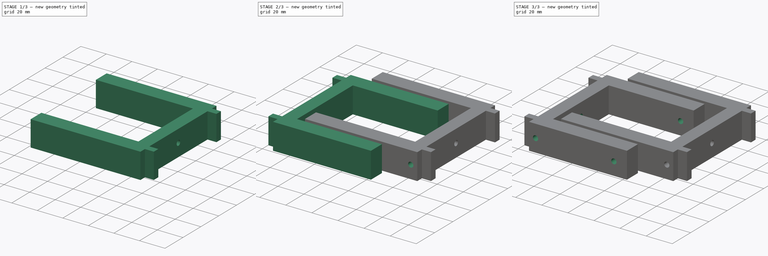
[diagram: build sequence overview — one tinted view per stage of 3, left to right]
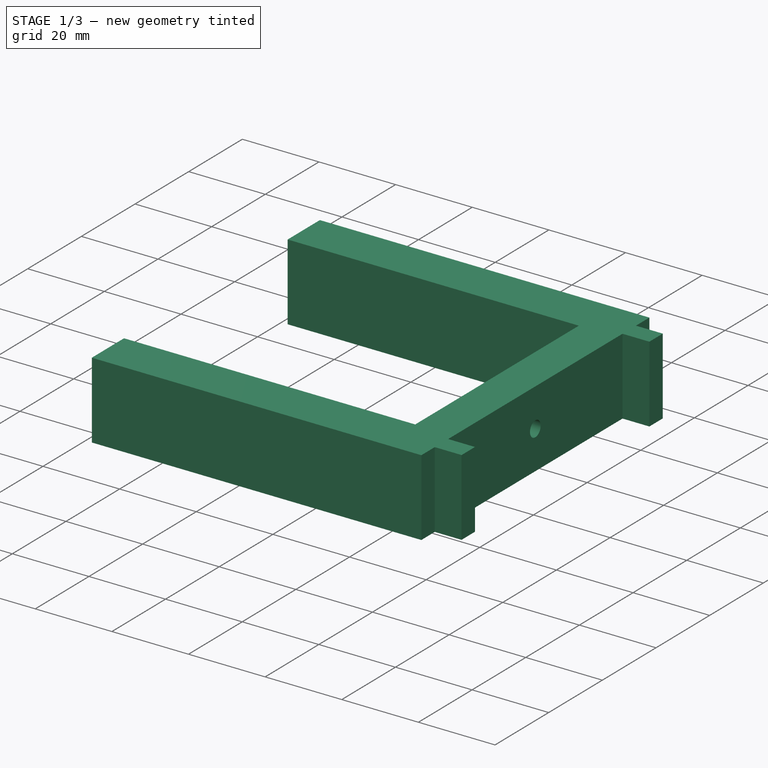
[diagram: stage 1 of 3 — iso view after this stage's code; geometry added in this stage tinted green]
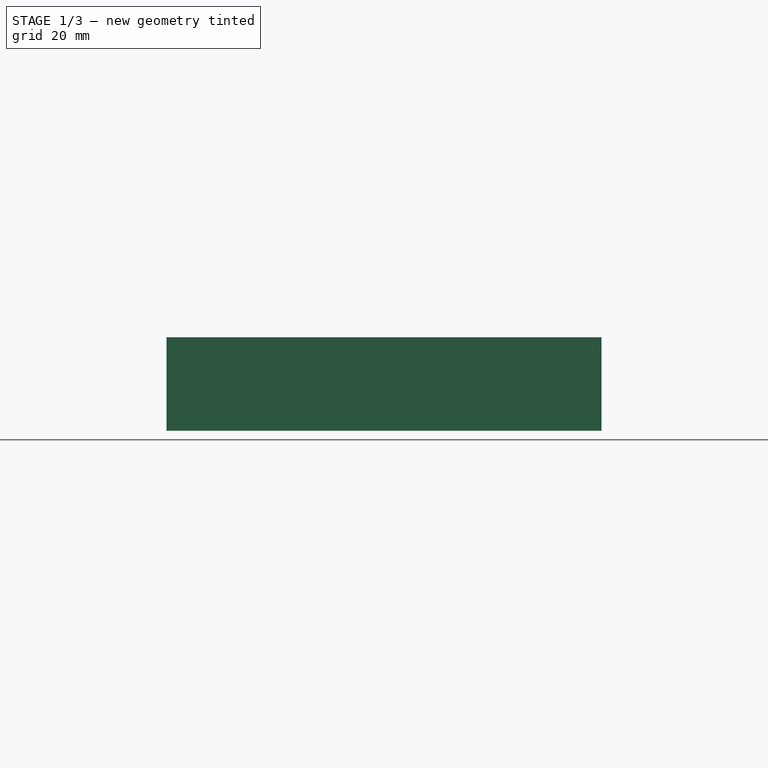
[diagram: stage 1 of 3 — front view after this stage's code; geometry added in this stage tinted green]
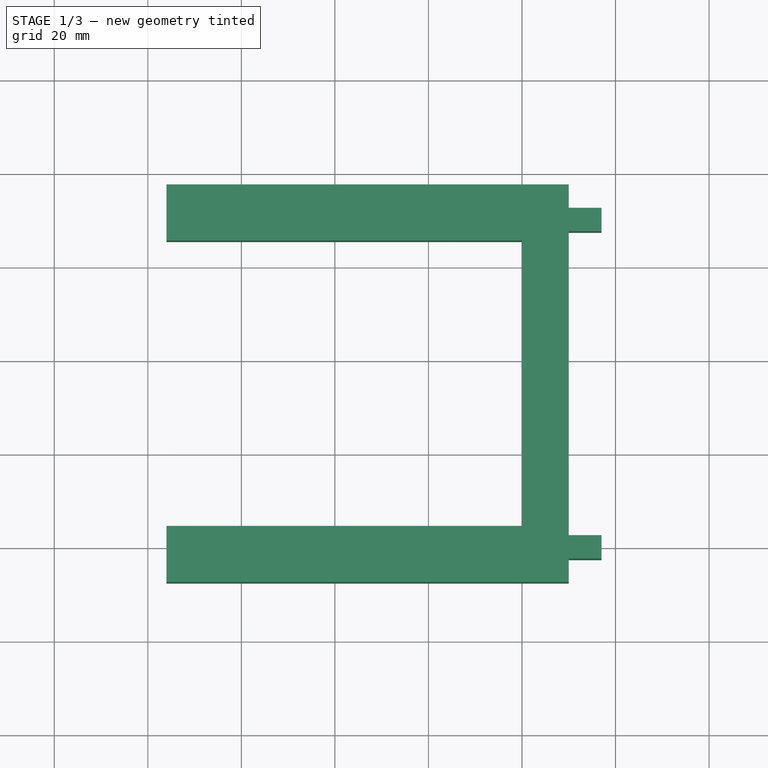
[diagram: stage 1 of 3 — top view after this stage's code; geometry added in this stage tinted green]
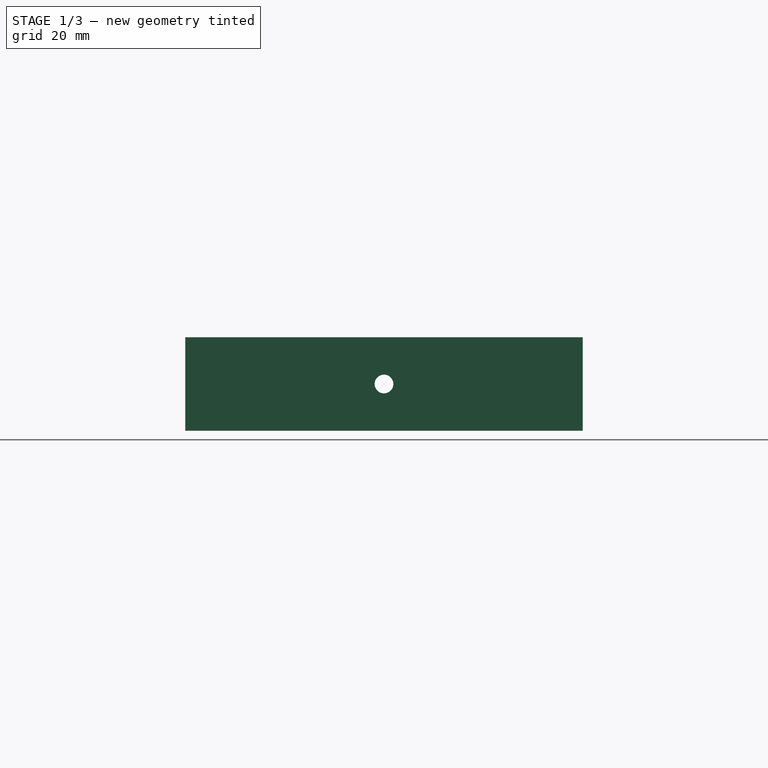
[diagram: stage 1 of 3 — right view after this stage's code; geometry added in this stage tinted green]
FCSTD DOCUMENT  (FreeCAD 0.15R4671 (Git))
Label: soporte_75_86
License: CreativeCommons Attribution-ShareAlike
LicenseURL: http://creativecommons.org/licenses/by-sa/4.0/
objects: Sketcher::SketchObject×6, PartDesign::Pocket×4, PartDesign::Pad×2, App::DocumentObjectGroup×2
note: 18 computed .brp shape members not serialized (recipe doc carries the construction recipe); baked Part::Feature solids carry a one-line shape summary decoded from their .brp

FEATURE [App::DocumentObjectGroup] Group  label="soporte_75mm"
  Group = -> [Pad,Pocket002,Pocket003]
FEATURE [Sketcher::SketchObject] Sketch006  label="sketch_soporte001"
  Placement = pos=(80,15,0) rot=(0,0,1;3.14159rad)
  sketch-geometry (16):
    g0: LineSegment StartX=-10 StartY=-42.5 StartZ=0 EndX=76 EndY=-42.5 EndZ=0
    g1: LineSegment StartX=76 StartY=-42.5 StartZ=0 EndX=76 EndY=-30.5 EndZ=0
    g2: LineSegment StartX=76 StartY=-30.5 StartZ=0 EndX=0 EndY=-30.5 EndZ=0
    g3: LineSegment StartX=0 StartY=30.5 StartZ=0 EndX=76 EndY=30.5 EndZ=0
    g4: LineSegment StartX=76 StartY=30.5 StartZ=0 EndX=76 EndY=42.5 EndZ=0
    g5: LineSegment StartX=76 StartY=42.5 StartZ=0 EndX=-10 EndY=42.5 EndZ=0
    g6: LineSegment StartX=-10 StartY=-42.5 StartZ=0 EndX=-10 EndY=-37.5 EndZ=0
    g7: LineSegment StartX=-10 StartY=-37.5 StartZ=0 EndX=-17 EndY=-37.5 EndZ=0
    g8: LineSegment StartX=-17 StartY=-37.5 StartZ=0 EndX=-17 EndY=-32.5 EndZ=0
    g9: LineSegment StartX=-17 StartY=-32.5 StartZ=0 EndX=-10 EndY=-32.5 EndZ=0
    g10: LineSegment StartX=-10 StartY=-32.5 StartZ=0 EndX=-10 EndY=32.5 EndZ=0
    g11: LineSegment StartX=-10 StartY=32.5 StartZ=0 EndX=-17 EndY=32.5 EndZ=0
    g12: LineSegment StartX=-17 StartY=32.5 StartZ=0 EndX=-17 EndY=37.5 EndZ=0
    g13: LineSegment StartX=-17 StartY=37.5 StartZ=0 EndX=-10 EndY=37.5 EndZ=0
    g14: LineSegment StartX=-10 StartY=37.5 StartZ=0 EndX=-10 EndY=42.5 EndZ=0
    g15: LineSegment StartX=0 StartY=30.5 StartZ=0 EndX=0 EndY=-30.5 EndZ=0
  constraints (47):
    c: Horizontal(g0)
    c: Coincident(g0,g1)
    c: Vertical(g1)
    c: Coincident(g1,g2)
    c: Horizontal(g2)
    c: Horizontal(g3)
    c: Coincident(g3,g4)
    c: Vertical(g4)
    c: Coincident(g4,g5)
    c: Horizontal(g5)
    c: Symmetric(g3,g2,g-1)
    c: DistanceX(g0) = 86
    c: Equal(g1,g4)
    c: Equal(g5,g0)
    c: DistanceY(g1) = 12
    c: DistanceX(g2,g0) = -10
    c: DistanceY(g5,g0) = -85
    c: Coincident(g0,g6)
    c: Vertical(g6)
    c: Coincident(g6,g7)
    c: Horizontal(g7)
    c: Coincident(g7,g8)
    c: Vertical(g8)
    c: Coincident(g8,g9)
    c: Horizontal(g9)
    c: Coincident(g9,g10)
    c: Vertical(g10)
    c: Coincident(g10,g11)
    c: Horizontal(g11)
    c: Coincident(g11,g12)
    c: Vertical(g12)
    c: Coincident(g12,g13)
    c: Horizontal(g13)
    c: Coincident(g13,g14)
    c: Coincident(g14,g5)
    c: Vertical(g14)
    c: Equal(g13,g11)
    c: Equal(g11,g9)
    c: Equal(g9,g7)
    c: Equal(g8,g12)
    c: Equal(g14,g6)
    c: DistanceY(g8) = 5
    c: DistanceX(g9) = 7
    c: DistanceY(g10) = 65
    c: Coincident(g15,g3)
    c: Coincident(g15,g2)
    c: PointOnObject(g-1,g15)
FEATURE [PartDesign::Pad] Pad001  label="soporte001"
  Length = 20
  Length2 = 100
  Placement = pos=(80,15,0) rot=(0,0,1;3.14159rad)
  Sketch = -> Sketch006
  Type = 0
FEATURE [Sketcher::SketchObject] Sketch007  label="sketch_agujero_superior001"
  ExternalGeometry = -> [Pad001]
  Placement = pos=(90,15,0) rot=(0.57735,0.57735,0.57735;2.0944rad)
  Support = -> Pad001 [Face13]
  sketch-geometry (3):
    g0: LineSegment [constr] StartX=0 StartY=20 StartZ=0 EndX=0 EndY=10 EndZ=0
    g1: LineSegment [constr] StartX=0 StartY=0 StartZ=0 EndX=0 EndY=10 EndZ=0
    g2: Circle CenterX=0 CenterY=10 CenterZ=0 NormalX=0 NormalY=0 NormalZ=1 Radius=2
  constraints (9):
    c: PointOnObject(g0,g-3)
    c: Vertical(g0)
    c: PointOnObject(g1,g-4)
    c: Coincident(g1,g0)
    c: Vertical(g1)
    c: Equal(g0,g1)
    c: Coincident(g1,g-1)
    c: Coincident(g2,g0)
    c: Radius(g2) = 2
FEATURE [PartDesign::Pocket] Pocket004  label="soporte_agujero_superior001"
  Length = 5
  Placement = pos=(80,15,0) rot=(0,0,1;3.14159rad)
  Sketch = -> Sketch007
  Type = 1
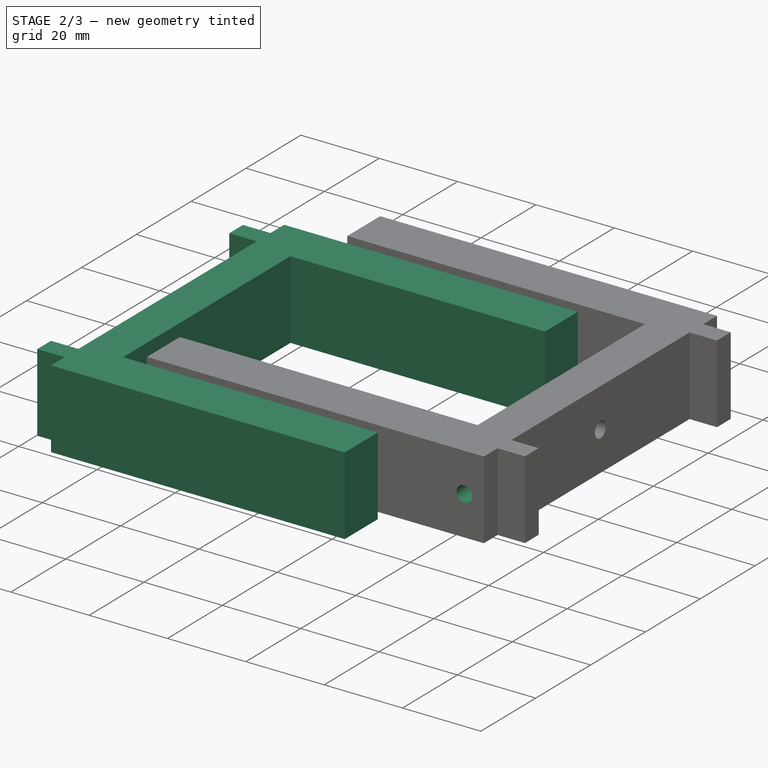
[diagram: stage 2 of 3 — iso view after this stage's code; geometry added in this stage tinted green]
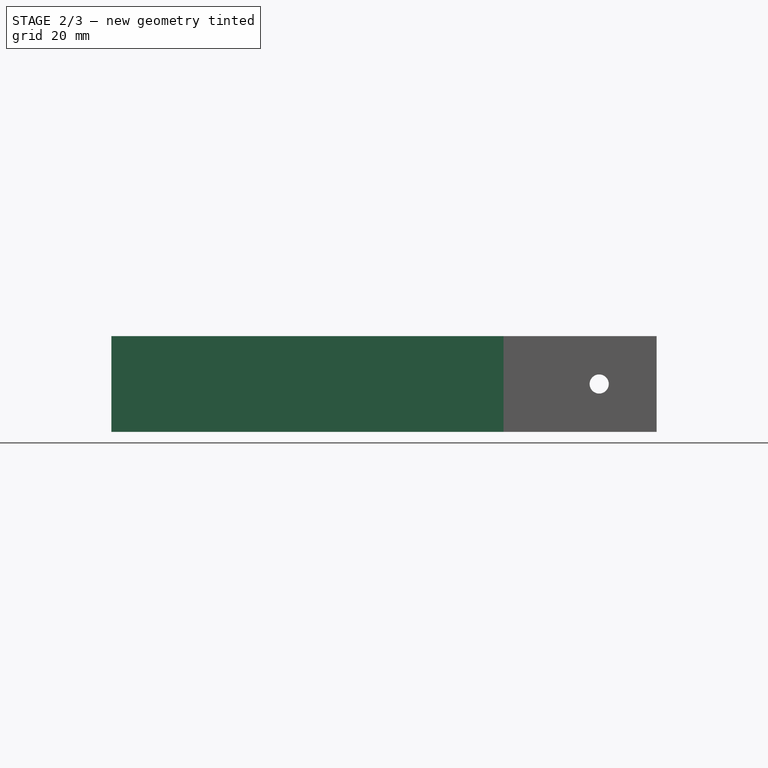
[diagram: stage 2 of 3 — front view after this stage's code; geometry added in this stage tinted green]
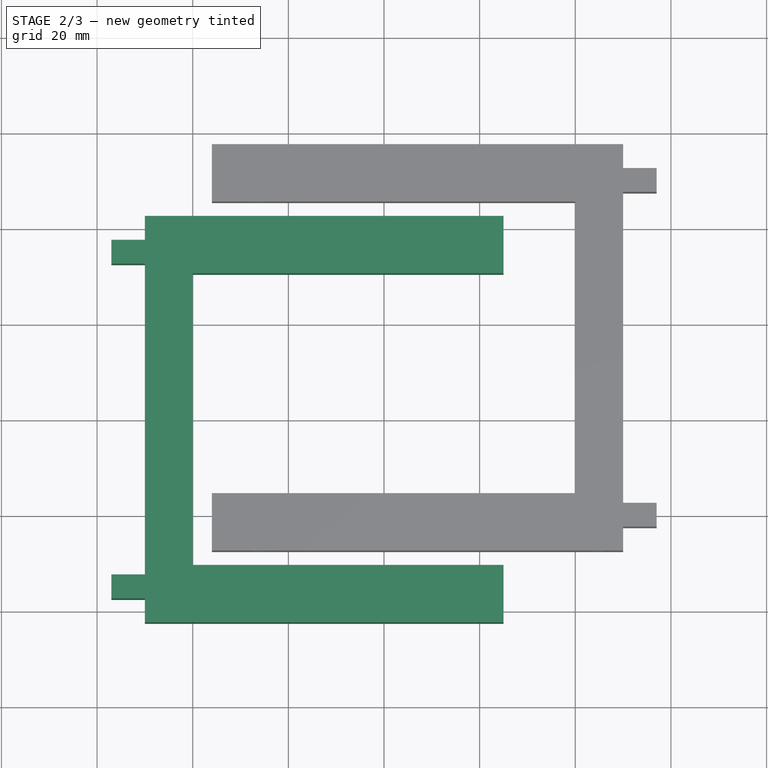
[diagram: stage 2 of 3 — top view after this stage's code; geometry added in this stage tinted green]
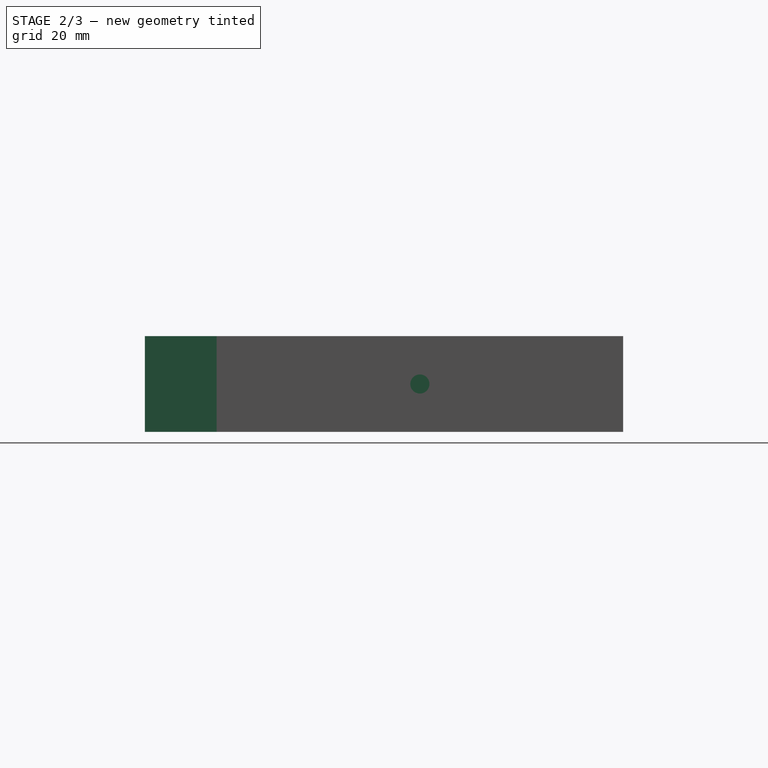
[diagram: stage 2 of 3 — right view after this stage's code; geometry added in this stage tinted green]
FEATURE [Sketcher::SketchObject] Sketch  label="sketch_soporte"
  sketch-geometry (16):
    g0: LineSegment StartX=-10 StartY=-42.5 StartZ=0 EndX=65 EndY=-42.5 EndZ=0
    g1: LineSegment StartX=65 StartY=-42.5 StartZ=0 EndX=65 EndY=-30.5 EndZ=0
    g2: LineSegment StartX=65 StartY=-30.5 StartZ=0 EndX=0 EndY=-30.5 EndZ=0
    g3: LineSegment StartX=0 StartY=30.5 StartZ=0 EndX=65 EndY=30.5 EndZ=0
    g4: LineSegment StartX=65 StartY=30.5 StartZ=0 EndX=65 EndY=42.5 EndZ=0
    g5: LineSegment StartX=65 StartY=42.5 StartZ=0 EndX=-10 EndY=42.5 EndZ=0
    g6: LineSegment StartX=-10 StartY=-42.5 StartZ=0 EndX=-10 EndY=-37.5 EndZ=0
    g7: LineSegment StartX=-10 StartY=-37.5 StartZ=0 EndX=-17 EndY=-37.5 EndZ=0
    g8: LineSegment StartX=-17 StartY=-37.5 StartZ=0 EndX=-17 EndY=-32.5 EndZ=0
    g9: LineSegment StartX=-17 StartY=-32.5 StartZ=0 EndX=-10 EndY=-32.5 EndZ=0
    g10: LineSegment StartX=-10 StartY=-32.5 StartZ=0 EndX=-10 EndY=32.5 EndZ=0
    g11: LineSegment StartX=-10 StartY=32.5 StartZ=0 EndX=-17 EndY=32.5 EndZ=0
    g12: LineSegment StartX=-17 StartY=32.5 StartZ=0 EndX=-17 EndY=37.5 EndZ=0
    g13: LineSegment StartX=-17 StartY=37.5 StartZ=0 EndX=-10 EndY=37.5 EndZ=0
    g14: LineSegment StartX=-10 StartY=37.5 StartZ=0 EndX=-10 EndY=42.5 EndZ=0
    g15: LineSegment StartX=0 StartY=30.5 StartZ=0 EndX=0 EndY=-30.5 EndZ=0
  constraints (47):
    c: Horizontal(g0)
    c: Coincident(g0,g1)
    c: Vertical(g1)
    c: Coincident(g1,g2)
    c: Horizontal(g2)
    c: Horizontal(g3)
    c: Coincident(g3,g4)
    c: Vertical(g4)
    c: Coincident(g4,g5)
    c: Horizontal(g5)
    c: Symmetric(g3,g2,g-1)
    c: DistanceX(g0) = 75
    c: Equal(g1,g4)
    c: Equal(g5,g0)
    c: DistanceY(g1) = 12
    c: DistanceX(g2,g0) = -10
    c: DistanceY(g5,g0) = -85
    c: Coincident(g0,g6)
    c: Vertical(g6)
    c: Coincident(g6,g7)
    c: Horizontal(g7)
    c: Coincident(g7,g8)
    c: Vertical(g8)
    c: Coincident(g8,g9)
    c: Horizontal(g9)
    c: Coincident(g9,g10)
    c: Vertical(g10)
    c: Coincident(g10,g11)
    c: Horizontal(g11)
    c: Coincident(g11,g12)
    c: Vertical(g12)
    c: Coincident(g12,g13)
    c: Horizontal(g13)
    c: Coincident(g13,g14)
    c: Coincident(g14,g5)
    c: Vertical(g14)
    c: Equal(g13,g11)
    c: Equal(g11,g9)
    c: Equal(g9,g7)
    c: Equal(g8,g12)
    c: Equal(g14,g6)
    c: DistanceY(g8) = 5
    c: DistanceX(g9) = 7
    c: DistanceY(g10) = 65
    c: Coincident(g15,g3)
    c: Coincident(g15,g2)
    c: PointOnObject(g-1,g15)
FEATURE [PartDesign::Pad] Pad  label="soporte"
  Length = 20
  Length2 = 100
  Sketch = -> Sketch
  Type = 0
FEATURE [Sketcher::SketchObject] Sketch008  label="sketch_agujero_lateral001"
  ExternalGeometry = -> [Pocket004]
  Placement = pos=(80,57.5,0) rot=(0,0.707107,0.707107;3.14159rad)
  Support = -> Pocket004 [Face2]
  sketch-geometry (9):
    g0: LineSegment [constr] StartX=-5 StartY=20 StartZ=0 EndX=-5 EndY=10 EndZ=0
    g1: LineSegment [constr] StartX=-5 StartY=0 StartZ=0 EndX=-5 EndY=10 EndZ=0
    g2: LineSegment [constr] StartX=-5 StartY=10 StartZ=0 EndX=-10 EndY=10 EndZ=0
    g3: LineSegment [constr] StartX=0 StartY=10 StartZ=0 EndX=-5 EndY=10 EndZ=0
    g4: Circle CenterX=-5 CenterY=10 CenterZ=0 NormalX=0 NormalY=0 NormalZ=1 Radius=2
    g5: LineSegment [constr] StartX=66 StartY=20 StartZ=0 EndX=66 EndY=10 EndZ=0
    g6: LineSegment [constr] StartX=66 StartY=10 StartZ=0 EndX=66 EndY=0 EndZ=0
    g7: LineSegment [constr] StartX=66 StartY=10 StartZ=0 EndX=76 EndY=10 EndZ=0
    g8: Circle CenterX=66 CenterY=10 CenterZ=0 NormalX=0 NormalY=0 NormalZ=1 Radius=2
  constraints (27):
    c: PointOnObject(g0,g-5)
    c: Vertical(g0)
    c: PointOnObject(g1,g-6)
    c: Coincident(g1,g0)
    c: Vertical(g1)
    c: Coincident(g2,g0)
    c: PointOnObject(g2,g-4)
    c: Horizontal(g2)
    c: PointOnObject(g3,g-3)
    c: Horizontal(g3)
    c: Coincident(g3,g0)
    c: Equal(g0,g1)
    c: Equal(g2,g3)
    c: Coincident(g4,g0)
    c: Radius(g4) = 2
    c: PointOnObject(g5,g-5)
    c: Vertical(g5)
    c: Coincident(g6,g5)
    c: PointOnObject(g6,g-6)
    c: Vertical(g6)
    c: Coincident(g7,g5)
    c: PointOnObject(g7,g-7)
    c: Horizontal(g7)
    c: Equal(g5,g6)
    c: DistanceX(g7) = 10
    c: Coincident(g8,g5)
    c: Equal(g8,g4)
FEATURE [PartDesign::Pocket] Pocket005  label="soporte_agujero_superior_lateral001"
  Length = 5
  Placement = pos=(80,15,0) rot=(0,0,1;3.14159rad)
  Sketch = -> Sketch008
  Type = 1
FEATURE [App::DocumentObjectGroup] Group001  label="soporte_86mm"
  Group = -> [Pad001,Pocket004,Pocket005]
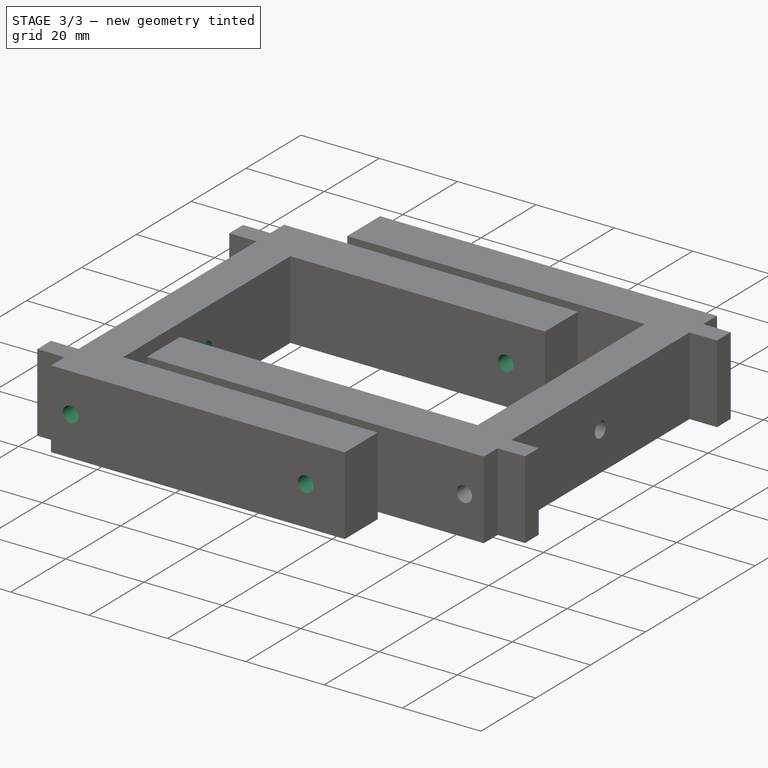
[diagram: stage 3 of 3 — iso view after this stage's code; geometry added in this stage tinted green]
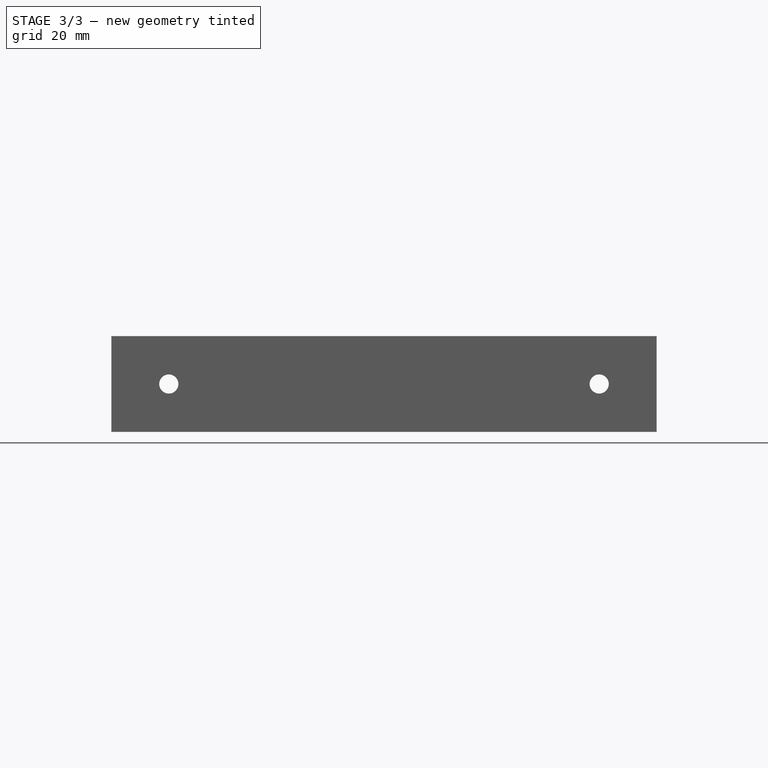
[diagram: stage 3 of 3 — front view after this stage's code; geometry added in this stage tinted green]
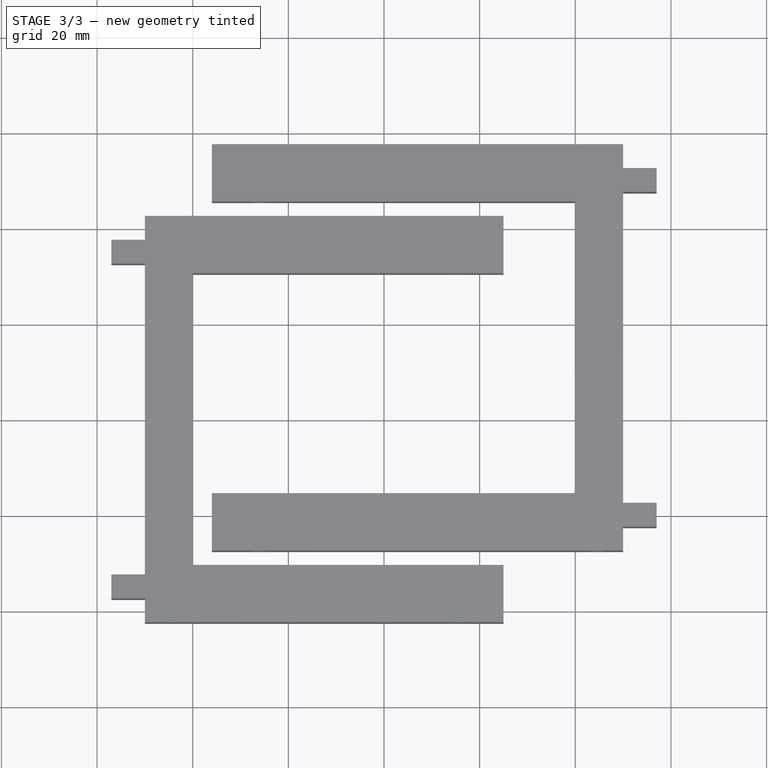
[diagram: stage 3 of 3 — top view after this stage's code; geometry added in this stage tinted green]
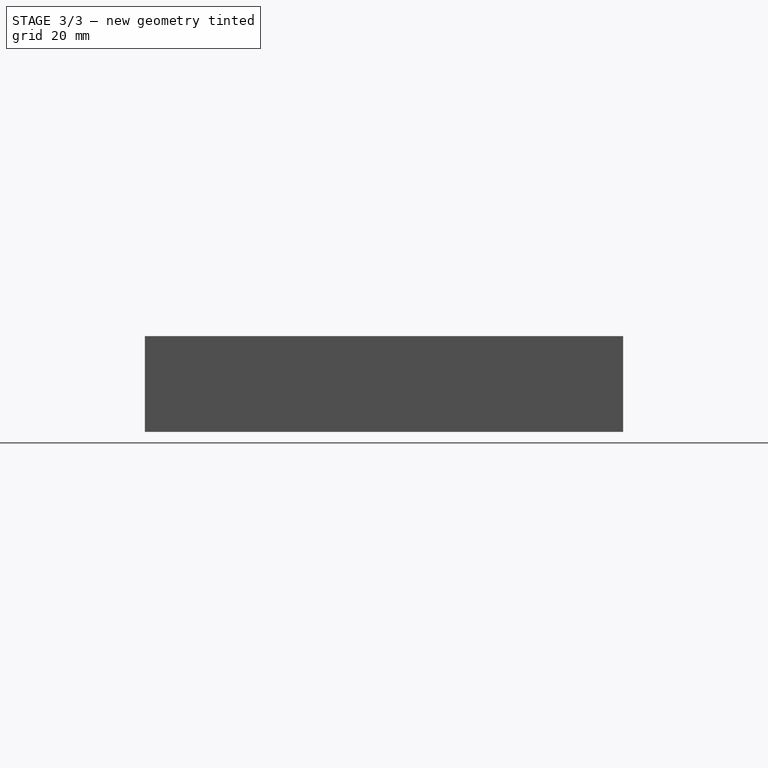
[diagram: stage 3 of 3 — right view after this stage's code; geometry added in this stage tinted green]
FEATURE [Sketcher::SketchObject] Sketch004  label="sketch_agujero_superior"
  ExternalGeometry = -> [Pad]
  Placement = pos=(-10,0,0) rot=(0.57735,-0.57735,-0.57735;2.0944rad)
  Support = -> Pad [Face13]
  sketch-geometry (3):
    g0: LineSegment [constr] StartX=0 StartY=20 StartZ=0 EndX=0 EndY=10 EndZ=0
    g1: LineSegment [constr] StartX=0 StartY=0 StartZ=0 EndX=0 EndY=10 EndZ=0
    g2: Circle CenterX=0 CenterY=10 CenterZ=0 NormalX=0 NormalY=0 NormalZ=1 Radius=2
  constraints (9):
    c: PointOnObject(g0,g-3)
    c: Vertical(g0)
    c: PointOnObject(g1,g-4)
    c: Coincident(g1,g0)
    c: Vertical(g1)
    c: Equal(g0,g1)
    c: Coincident(g1,g-1)
    c: Coincident(g2,g0)
    c: Radius(g2) = 2
FEATURE [PartDesign::Pocket] Pocket002  label="soporte_agujero_superior"
  Length = 5
  Sketch = -> Sketch004
  Type = 1
FEATURE [Sketcher::SketchObject] Sketch005  label="sketch_agujero_lateral"
  ExternalGeometry = -> [Pocket002]
  Placement = pos=(0,-42.5,0) rot=(1,0,0;1.5708rad)
  Support = -> Pocket002 [Face2]
  sketch-geometry (9):
    g0: LineSegment [constr] StartX=-5 StartY=20 StartZ=0 EndX=-5 EndY=10 EndZ=0
    g1: LineSegment [constr] StartX=-5 StartY=0 StartZ=0 EndX=-5 EndY=10 EndZ=0
    g2: LineSegment [constr] StartX=-5 StartY=10 StartZ=0 EndX=-10 EndY=10 EndZ=0
    g3: LineSegment [constr] StartX=0 StartY=10 StartZ=0 EndX=-5 EndY=10 EndZ=0
    g4: Circle CenterX=-5 CenterY=10 CenterZ=0 NormalX=0 NormalY=0 NormalZ=1 Radius=2
    g5: LineSegment [constr] StartX=55 StartY=20 StartZ=0 EndX=55 EndY=10 EndZ=0
    g6: LineSegment [constr] StartX=55 StartY=10 StartZ=0 EndX=55 EndY=0 EndZ=0
    g7: LineSegment [constr] StartX=55 StartY=10 StartZ=0 EndX=65 EndY=10 EndZ=0
    g8: Circle CenterX=55 CenterY=10 CenterZ=0 NormalX=0 NormalY=0 NormalZ=1 Radius=2
  constraints (27):
    c: PointOnObject(g0,g-5)
    c: Vertical(g0)
    c: PointOnObject(g1,g-6)
    c: Coincident(g1,g0)
    c: Vertical(g1)
    c: Coincident(g2,g0)
    c: PointOnObject(g2,g-4)
    c: Horizontal(g2)
    c: PointOnObject(g3,g-3)
    c: Horizontal(g3)
    c: Coincident(g3,g0)
    c: Equal(g0,g1)
    c: Equal(g2,g3)
    c: Coincident(g4,g0)
    c: Radius(g4) = 2
    c: PointOnObject(g5,g-5)
    c: Vertical(g5)
    c: Coincident(g6,g5)
    c: PointOnObject(g6,g-6)
    c: Vertical(g6)
    c: Coincident(g7,g5)
    c: PointOnObject(g7,g-7)
    c: Horizontal(g7)
    c: Equal(g5,g6)
    c: DistanceX(g7) = 10
    c: Coincident(g8,g5)
    c: Equal(g8,g4)
FEATURE [PartDesign::Pocket] Pocket003  label="soporte_agujero_superior_lateral"
  Length = 5
  Sketch = -> Sketch005
  Type = 1
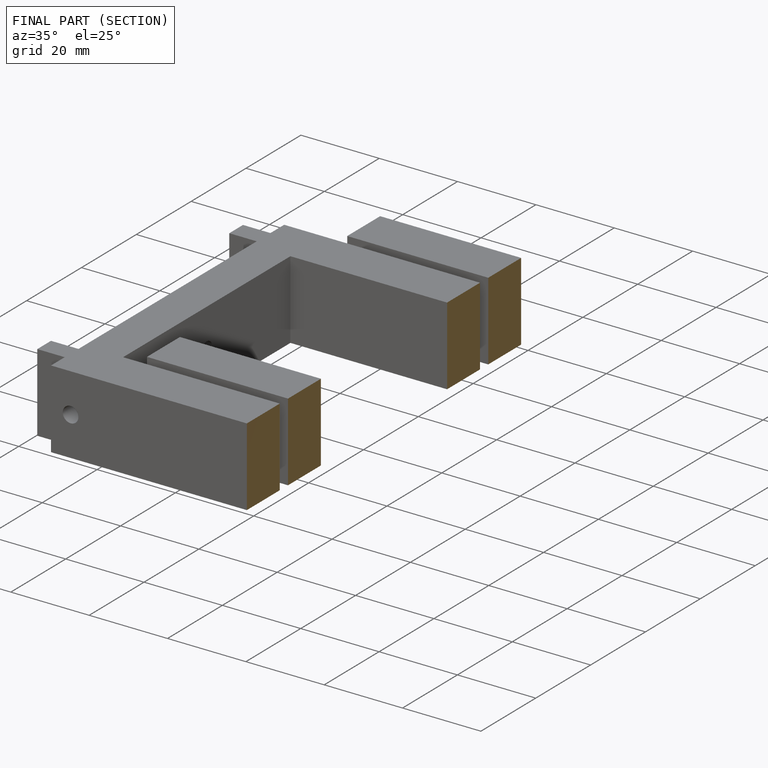
[diagram: finished part — half-section view (interior)]
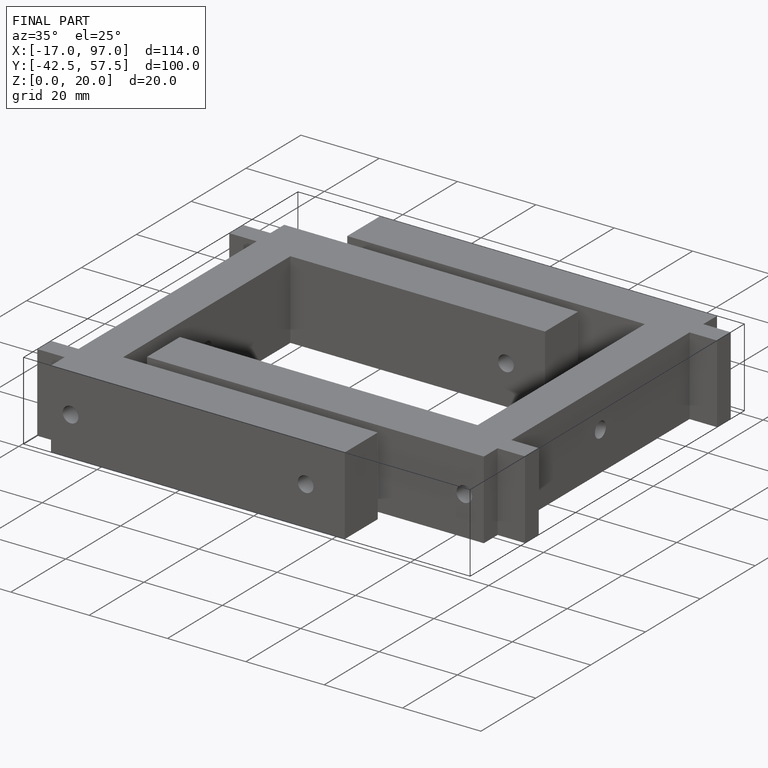
[diagram: finished part — iso view with bounding-box wireframe]
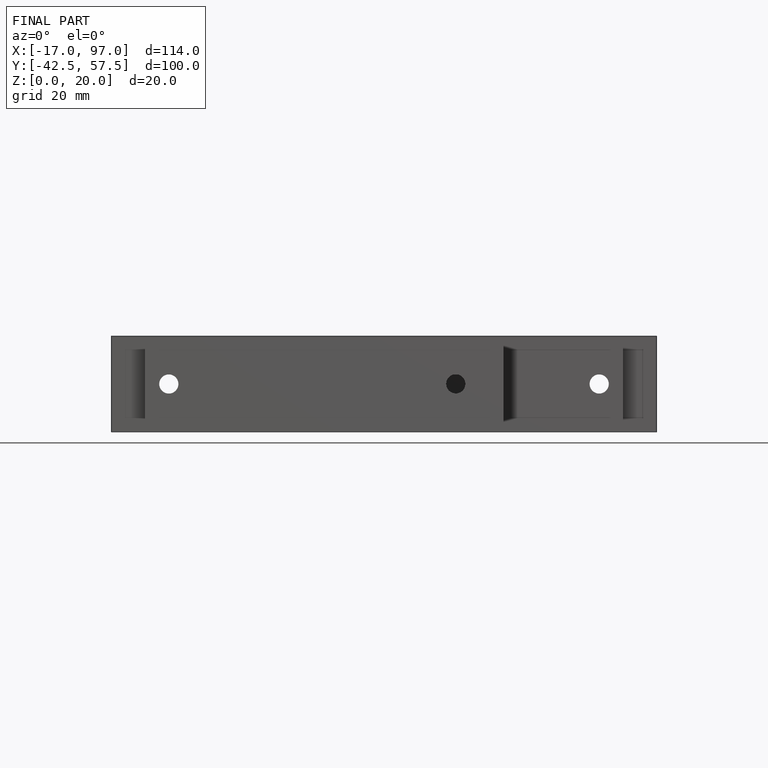
[diagram: finished part — front view with bounding-box wireframe]
